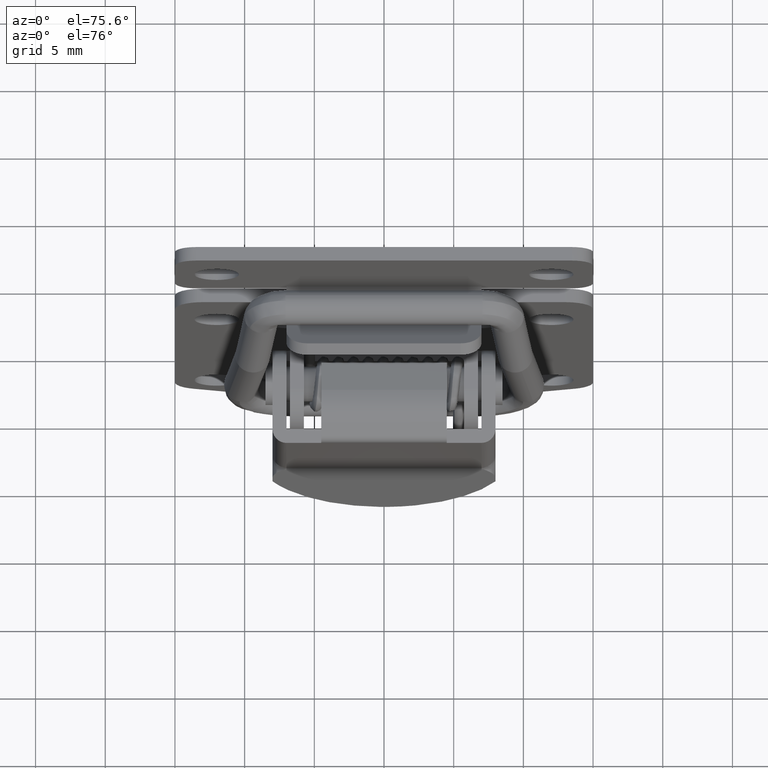
[diagram: clean part render]
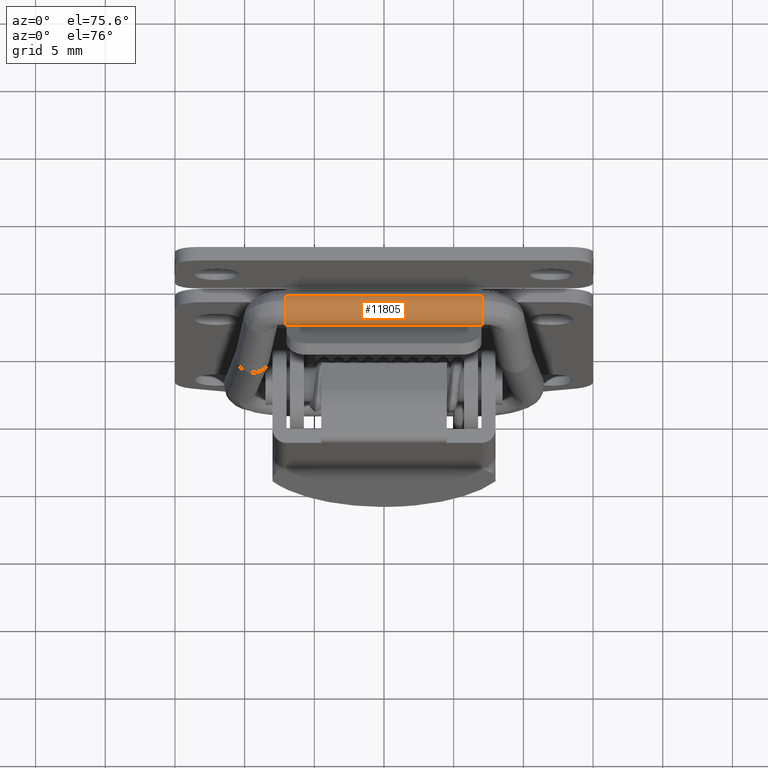
[diagram: same view with one face highlighted and labeled with its STEP entity id]
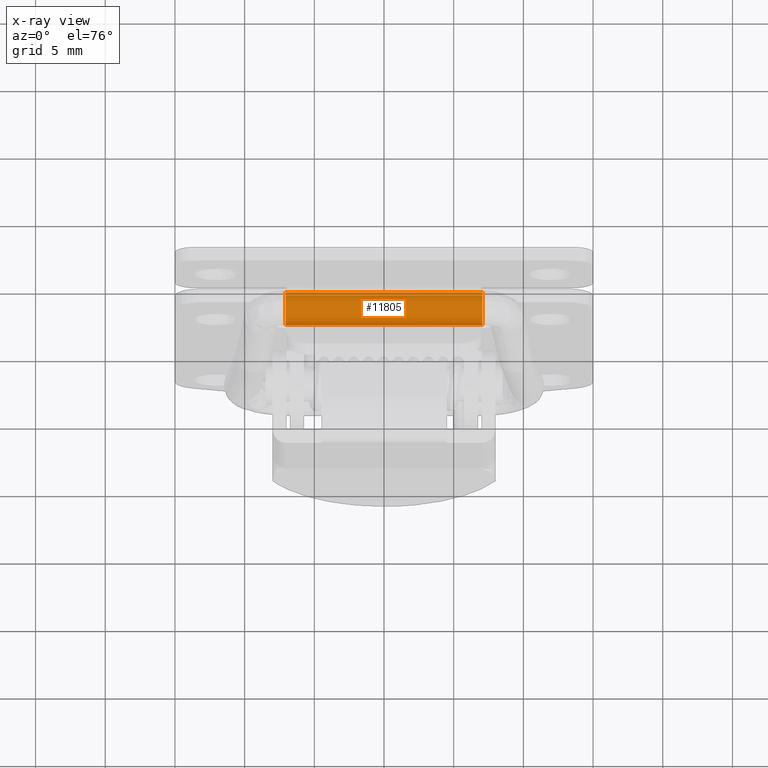
[diagram: x-ray of the same camera — body ghosted, the highlighted face saturated]
A machine part, auxiliary view. The second image highlights one B-rep face of the part: STEP entity #11805.
The next image is the same camera in x-ray: the body ghosted, the highlighted face saturated — about 0% of this face is hidden behind the body in this view.
In plain terms, the highlighted face is a freeform B-spline surface patch.
Its self-contained STEP definition (entity closure, byte-faithful):
#11632=CARTESIAN_POINT('',(1.213060540793296,7.054850419027430,0.198427851668698));
#11633=VERTEX_POINT('',#11632);
#11634=CARTESIAN_POINT('',(0.644681424262424,7.054850417722246,1.570926733293257));
#11635=VERTEX_POINT('',#11634);
#11651=CARTESIAN_POINT('',(0.644366690679273,-7.054853235861300,1.570404229331628));
#11652=VERTEX_POINT('',#11651);
#11653=CARTESIAN_POINT('',(0.644366690679273,-7.054853235861300,1.570404229331628));
#11654=CARTESIAN_POINT('',(0.644681424262424,7.054850417722246,1.570926733293257));
#11655=QUASI_UNIFORM_CURVE('',1,(#11653,#11654),.UNSPECIFIED.,.F.,.U.);
#11656=EDGE_CURVE('',#11652,#11635,#11655,.T.);
#11658=CARTESIAN_POINT('',(1.213001261443215,-7.054853235861300,0.198442901899967));
#11659=VERTEX_POINT('',#11658);
#11671=CARTESIAN_POINT('',(1.213001261443215,-7.054853235861300,0.198442901899967));
#11672=CARTESIAN_POINT('',(1.213060540793296,7.054850419027430,0.198427851668698));
#11673=QUASI_UNIFORM_CURVE('',1,(#11671,#11672),.UNSPECIFIED.,.F.,.U.);
#11674=EDGE_CURVE('',#11659,#11633,#11673,.T.);
#11679=CARTESIAN_POINT('',(1.213075767542557,-7.407595827239485,0.198423855054706));
#11680=CARTESIAN_POINT('',(0.911499622596864,-7.407595827239485,-1.014651504846604));
#11681=CARTESIAN_POINT('',(-0.301575737304446,-7.407595827239485,-0.713075359900911));
#11682=CARTESIAN_POINT('',(-1.514651097205756,-7.407595827239485,-0.411499214955218));
#11683=CARTESIAN_POINT('',(-1.213074952260064,-7.407595827239485,0.801576144946092));
#11684=CARTESIAN_POINT('',(-0.911498807314371,-7.407595827239485,2.014651504847402));
#11685=CARTESIAN_POINT('',(0.301576552586939,-7.407595827239485,1.713075359901709));
#11686=CARTESIAN_POINT('',(0.483806073384066,-7.407595827239485,1.667772258219907));
#11687=CARTESIAN_POINT('',(0.644681982580250,-7.407595827239485,1.570927479773966));
#11688=CARTESIAN_POINT('',(1.213075767542557,7.416411575428720,0.198423855054704));
#11689=CARTESIAN_POINT('',(0.911499622596864,7.416411575428722,-1.014651504846607));
#11690=CARTESIAN_POINT('',(-0.301575737304446,7.416411575428720,-0.713075359900914));
#11691=CARTESIAN_POINT('',(-1.514651097205756,7.416411575428722,-0.411499214955221));
#11692=CARTESIAN_POINT('',(-1.213074952260064,7.416411575428720,0.801576144946089));
#11693=CARTESIAN_POINT('',(-0.911498807314371,7.416411575428722,2.014651504847400));
#11694=CARTESIAN_POINT('',(0.301576552586939,7.416411575428720,1.713075359901707));
#11695=CARTESIAN_POINT('',(0.483806073384065,7.416411575428720,1.667772258219904));
#11696=CARTESIAN_POINT('',(0.644681982580249,7.416411575428720,1.570927479773964));
#11704=(BOUNDED_SURFACE()B_SPLINE_SURFACE(2,1,((#11679,#11688),(#11680,#11689),(#11681,#11690),(#11682,#11691),(#11683,#11692),(#11684,#11693),(#11685,#11694),(#11686,#11695),(#11687,#11696)),.UNSPECIFIED.,.F.,.F.,.U.)B_SPLINE_SURFACE_WITH_KNOTS((3,2,2,2,3),(2,2),(0.0,1.570796326794897,3.141592653589793,4.712388980384690,5.026548245743669),(0.0,14.824007402668210),.UNSPECIFIED.)GEOMETRIC_REPRESENTATION_ITEM()RATIONAL_B_SPLINE_SURFACE(((1.0,1.0),(0.707106781186548,0.707106781186548),(1.0,1.0),(0.707106781186548,0.707106781186548),(1.0,1.0),(0.707106781186548,0.707106781186548),(1.0,1.0),(0.941421356237310,0.941421356237310),(0.906274169979695,0.906274169979695)))REPRESENTATION_ITEM('')SURFACE());
#11705=CARTESIAN_POINT('',(0.205470098189441,7.054850419266080,1.732997245036178));
#11706=VERTEX_POINT('',#11705);
#11707=CARTESIAN_POINT('',(0.644681424262424,7.054850417722246,1.570926733293257));
#11708=CARTESIAN_POINT('',(0.510178643193421,7.054850419266081,1.651861501095649));
#11709=CARTESIAN_POINT('',(0.360314746700814,7.054850419266080,1.707193552334776));
#11710=CARTESIAN_POINT('',(0.205470098189441,7.054850419266080,1.732997245036178));
#11711=B_SPLINE_CURVE_WITH_KNOTS('',3,(#11707,#11708,#11709,#11710),.UNSPECIFIED.,.F.,.U.,(4,4),(0.940038086894849,1.0),.UNSPECIFIED.);
#11712=EDGE_CURVE('',#11635,#11706,#11711,.T.);
#11713=ORIENTED_EDGE('',*,*,#11712,.T.);
#11714=CARTESIAN_POINT('',(-0.758145284873909,7.054850419266079,1.493816998338645));
#11715=VERTEX_POINT('',#11714);
#11716=CARTESIAN_POINT('',(0.205470098189441,7.054850419266080,1.732997245036178));
#11717=CARTESIAN_POINT('',(0.044072102019414,7.054850419266079,1.759891899444972));
#11718=CARTESIAN_POINT('',(-0.122610133902091,7.054850419266078,1.754684245130277));
#11719=CARTESIAN_POINT('',(-0.441419670184901,7.054850419266079,1.680849250094278));
#11720=CARTESIAN_POINT('',(-0.593421532607486,7.054850419266079,1.612250960290619));
#11721=CARTESIAN_POINT('',(-0.737214641965363,7.054850419266079,1.509534342067495));
#11722=CARTESIAN_POINT('',(-0.747742824097290,7.054850419266079,1.501757890678030));
#11723=CARTESIAN_POINT('',(-0.758145284873909,7.054850419266079,1.493816998338645));
#11724=B_SPLINE_CURVE_WITH_KNOTS('',3,(#11716,#11717,#11718,#11719,#11720,#11721,#11722,#11723),.UNSPECIFIED.,.F.,.U.,(4,2,2,4),(0.0,0.062500000000000,0.125000000000000,0.129999066540400),.UNSPECIFIED.);
#11725=EDGE_CURVE('',#11706,#11715,#11724,.T.);
#11726=ORIENTED_EDGE('',*,*,#11725,.T.);
#11727=CARTESIAN_POINT('',(-0.205469282906963,7.054850419266078,-0.732997245035464));
#11728=VERTEX_POINT('',#11727);
#11729=CARTESIAN_POINT('',(-0.758145284873909,7.054850419266079,1.493816998338645));
#11730=CARTESIAN_POINT('',(-0.877798918913981,7.054850419266079,1.402479583631268));
#11731=CARTESIAN_POINT('',(-0.980819153608696,7.054850419266079,1.289386024296726));
#11732=CARTESIAN_POINT('',(-1.147118588538600,7.054850419266079,1.022849244658347));
#11733=CARTESIAN_POINT('',(-1.206095925510450,7.054850419266079,0.866862112544678));
#11734=CARTESIAN_POINT('',(-1.259888600566622,7.054850419266077,0.544065283622707));
#11735=CARTESIAN_POINT('',(-1.254682773530365,7.054850419266077,0.377382593582513));
#11736=CARTESIAN_POINT('',(-1.180851445950416,7.054850419266079,0.058572145854536));
#11737=CARTESIAN_POINT('',(-1.112254994881381,7.054850419266082,-0.093430173535913));
#11738=CARTESIAN_POINT('',(-0.922039815006705,7.054850419266078,-0.359718239427217));
#11739=CARTESIAN_POINT('',(-0.800495927751775,7.054850419266078,-0.473899212945180));
#11740=CARTESIAN_POINT('',(-0.522855432413394,7.054850419266078,-0.647124952875188));
#11741=CARTESIAN_POINT('',(-0.366868064009051,7.054850419266078,-0.706101562355659));
#11742=CARTESIAN_POINT('',(-0.205469282906963,7.054850419266078,-0.732997245035464));
#11743=B_SPLINE_CURVE_WITH_KNOTS('',3,(#11729,#11730,#11731,#11732,#11733,#11734,#11735,#11736,#11737,#11738,#11739,#11740,#11741,#11742),.UNSPECIFIED.,.F.,.U.,(4,2,2,2,2,2,4),(0.129999066540400,0.187500000000000,0.250000000000000,0.312500000000000,0.375000000000000,0.437500000000000,0.500000000000000),.UNSPECIFIED.);
#11744=EDGE_CURVE('',#11715,#11728,#11743,.T.);
#11745=ORIENTED_EDGE('',*,*,#11744,.T.);
#11746=CARTESIAN_POINT('',(-0.205469282906963,7.054850419266078,-0.732997245035464));
#11747=CARTESIAN_POINT('',(-0.044069239472188,7.054850419249182,-0.759893434049269));
#11748=CARTESIAN_POINT('',(0.122615324790339,7.054850419229185,-0.754687472117603));
#11749=CARTESIAN_POINT('',(0.441429728965263,7.054850419186009,-0.680855922316882));
#11750=CARTESIAN_POINT('',(0.593434129023633,7.054850419162845,-0.612259384009917));
#11751=CARTESIAN_POINT('',(0.859726247528069,7.054850419116858,-0.422044090553359));
#11752=CARTESIAN_POINT('',(0.973909191396713,7.054850419094054,-0.300500176999164));
#11753=CARTESIAN_POINT('',(1.129815048438543,7.054850419056437,-0.050624523674046));
#11754=CARTESIAN_POINT('',(1.181419180053557,7.054850419040952,0.071417670044243));
#11755=CARTESIAN_POINT('',(1.213060540793296,7.054850419027430,0.198427851668698));
#11756=B_SPLINE_CURVE_WITH_KNOTS('',3,(#11746,#11747,#11748,#11749,#11750,#11751,#11752,#11753,#11754,#11755),.UNSPECIFIED.,.F.,.U.,(4,2,2,2,4),(0.500000000000000,0.562500000000000,0.625000000000000,0.687500000000000,0.737499648211655),.UNSPECIFIED.);
#11757=EDGE_CURVE('',#11728,#11633,#11756,.T.);
#11758=ORIENTED_EDGE('',*,*,#11757,.T.);
#11759=ORIENTED_EDGE('',*,*,#11674,.F.);
#11760=CARTESIAN_POINT('',(-0.205469282907942,-7.054853235861300,-0.732997245035299));
#11761=VERTEX_POINT('',#11760);
#11762=CARTESIAN_POINT('',(-0.205469282907942,-7.054853235861300,-0.732997245035299));
#11763=CARTESIAN_POINT('',(0.117339201650959,-7.054853235861300,-0.786791741205753));
#11764=CARTESIAN_POINT('',(0.460308009587848,-7.054853235861300,-0.707372060142738));
#11765=CARTESIAN_POINT('',(0.966274239902780,-7.054853235861300,-0.345975984921568));
#11766=CARTESIAN_POINT('',(1.141187178673781,-7.054853235861300,-0.086955411967897));
#11767=CARTESIAN_POINT('',(1.213001261443215,-7.054853235861300,0.198442901899967));
#11768=B_SPLINE_CURVE_WITH_KNOTS('',3,(#11762,#11763,#11764,#11765,#11766,#11767),.UNSPECIFIED.,.F.,.U.,(4,2,4),(0.500000000000000,0.625000000000000,0.737495067603205),.UNSPECIFIED.);
#11769=EDGE_CURVE('',#11761,#11659,#11768,.T.);
#11770=ORIENTED_EDGE('',*,*,#11769,.F.);
#11771=CARTESIAN_POINT('',(-0.758138694618020,-7.054853235861300,1.493808789934103));
#11772=VERTEX_POINT('',#11771);
#11773=CARTESIAN_POINT('',(-0.758138694618020,-7.054853235861300,1.493808789934103));
#11774=CARTESIAN_POINT('',(-1.007555762162673,-7.054853235861300,1.303002106642624));
#11775=CARTESIAN_POINT('',(-1.181356644272179,-7.054853235861300,1.015355862484174));
#11776=CARTESIAN_POINT('',(-1.286788676591510,-7.054853235861300,0.382671766641203));
#11777=CARTESIAN_POINT('',(-1.207365343703280,-7.054853235861300,0.039717473584253));
#11778=CARTESIAN_POINT('',(-0.826933290343637,-7.054853235861300,-0.492860876850333));
#11779=CARTESIAN_POINT('',(-0.528267206816325,-7.054853235861300,-0.679205405838240));
#11780=CARTESIAN_POINT('',(-0.205469282907942,-7.054853235861300,-0.732997245035299));
#11781=B_SPLINE_CURVE_WITH_KNOTS('',3,(#11773,#11774,#11775,#11776,#11777,#11778,#11779,#11780),.UNSPECIFIED.,.F.,.U.,(4,2,2,4),(0.129999936112298,0.250000000000000,0.375000000000000,0.500000000000000),.UNSPECIFIED.);
#11782=EDGE_CURVE('',#11772,#11761,#11781,.T.);
#11783=ORIENTED_EDGE('',*,*,#11782,.F.);
#11784=CARTESIAN_POINT('',(0.205470098190436,-7.054853235861300,1.732997245036103));
#11785=VERTEX_POINT('',#11784);
#11786=CARTESIAN_POINT('',(0.205470098190436,-7.054853235861300,1.732997245036103));
#11787=CARTESIAN_POINT('',(-0.117327825717948,-7.054853235861300,1.786789084233160));
#11788=CARTESIAN_POINT('',(-0.460282118774901,-7.054853235861300,1.707365751344930));
#11789=CARTESIAN_POINT('',(-0.737222724900059,-7.054853235861300,1.509541180817633));
#11790=CARTESIAN_POINT('',(-0.747746247642723,-7.054853235861300,1.501759121313494));
#11791=CARTESIAN_POINT('',(-0.758138694618020,-7.054853235861300,1.493808789934103));
#11792=B_SPLINE_CURVE_WITH_KNOTS('',3,(#11786,#11787,#11788,#11789,#11790,#11791),.UNSPECIFIED.,.F.,.U.,(4,2,4),(0.0,0.125000000000000,0.129999936112298),.UNSPECIFIED.);
#11793=EDGE_CURVE('',#11785,#11772,#11792,.T.);
#11794=ORIENTED_EDGE('',*,*,#11793,.F.);
#11795=CARTESIAN_POINT('',(0.644366690679273,-7.054853235861300,1.570404229331628));
#11796=CARTESIAN_POINT('',(0.509827678828471,-7.054853235861300,1.651235547388376));
#11797=CARTESIAN_POINT('',(0.360423702576313,-7.054853235861300,1.707365056292727));
#11798=CARTESIAN_POINT('',(0.205470098190436,-7.054853235861300,1.732997245036103));
#11799=B_SPLINE_CURVE_WITH_KNOTS('',3,(#11795,#11796,#11797,#11798),.UNSPECIFIED.,.F.,.U.,(4,4),(0.940036110511299,1.0),.UNSPECIFIED.);
#11800=EDGE_CURVE('',#11652,#11785,#11799,.T.);
#11801=ORIENTED_EDGE('',*,*,#11800,.F.);
#11802=ORIENTED_EDGE('',*,*,#11656,.T.);
#11803=EDGE_LOOP('',(#11713,#11726,#11745,#11758,#11759,#11770,#11783,#11794,#11801,#11802));
#11804=FACE_OUTER_BOUND('',#11803,.T.);
#11805=ADVANCED_FACE('',(#11804),#11704,.T.);